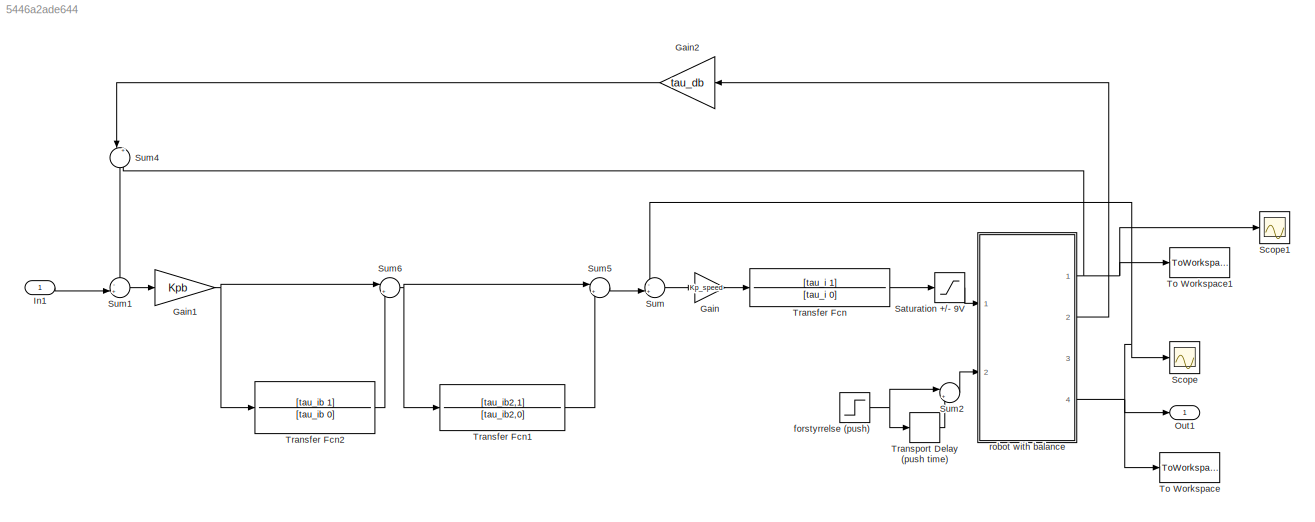
MODEL slx_5446a2ade644
KIND model
CONFIG AbsTol = auto
CONFIG EnableMultiTasking = on
CONFIG FixedStep = auto
CONFIG MaxStep = 0.001
CONFIG MinStep = auto
CONFIG RelTol = 1e-3
CONFIG SampleTimeConstraint = Unconstrained
CONFIG Solver = ode15s
CONFIG SolverName = ode15s
CONFIG StartTime = 0.0
CONFIG StopTime = 10
BLOCK [Gain] Gain
  Gain = Kp_speed
  OutDataTypeStr = Inherit: Inherit via internal rule
  ParamDataTypeStr = Inherit: Inherit via internal rule
  SaturateOnIntegerOverflow = off
BLOCK [Gain] Gain1
  Gain = Kpb
  OutDataTypeStr = Inherit: Inherit via internal rule
  ParamDataTypeStr = Inherit: Inherit via internal rule
  SaturateOnIntegerOverflow = off
BLOCK [Gain] Gain2
  Gain = tau_db
  OutDataTypeStr = Inherit: Inherit via internal rule
  ParamDataTypeStr = Inherit: Inherit via internal rule
  SaturateOnIntegerOverflow = off
BLOCK [Inport] In1
  IconDisplay = Port number
BLOCK [Outport] Out1
  IconDisplay = Port number
BLOCK [Saturate] Saturation +//- 9V
  InputPortMap = u0
  LowerLimit = -9
  Ports = [1, 1]
  UpperLimit = 9
BLOCK [Scope] Scope
  NumInputPorts = 1
  Ports = [1]
  ScopeSpecificationString = Simulink.scopes.TimeScopeBlockCfg('CurrentConfiguration', extmgr.ConfigurationSet(extmgr.Configuration('Core','General UI',true),extmgr.Configuration('Core','Source UI',true),extmgr.Configuration('Sources','WiredSimulink',true),extmgr.Configuration('Visuals','Time Domain',true,'SerializedDisplays',{struct('MinYLimReal','-0.44936','MaxYLimReal','1.64365','YLabelReal','','MinYLimMag','0.00000','MaxY...<+1388ch>
BLOCK [Scope] Scope1
  NumInputPorts = 1
  Ports = [1]
  ScopeSpecificationString = Simulink.scopes.TimeScopeBlockCfg('CurrentConfiguration', extmgr.ConfigurationSet(extmgr.Configuration('Core','General UI',true),extmgr.Configuration('Core','Source UI',true),extmgr.Configuration('Sources','WiredSimulink',true,'DataLoggingVariableName','ScopeData1'),extmgr.Configuration('Visuals','Time Domain',true,'SerializedDisplays',{struct('MinYLimReal','-0.14066','MaxYLimReal','0.59744','YLab...<+1406ch>
BLOCK [Sum] Sum
  IconShape = round
  InputSameDT = off
  Inputs = -+|
  OutDataTypeStr = Inherit: Inherit via internal rule
  Ports = [2, 1]
  SaturateOnIntegerOverflow = off
BLOCK [Sum] Sum1
  IconShape = round
  InputSameDT = off
  Inputs = -+|
  OutDataTypeStr = Inherit: Inherit via internal rule
  Ports = [2, 1]
  SaturateOnIntegerOverflow = off
BLOCK [Sum] Sum2
  IconShape = round
  InputSameDT = off
  Inputs = |+-
  OutDataTypeStr = Inherit: Inherit via internal rule
  Ports = [2, 1]
  SaturateOnIntegerOverflow = off
BLOCK [Sum] Sum4
  IconShape = round
  InputSameDT = off
  Inputs = |++
  OutDataTypeStr = Inherit: Inherit via internal rule
  Ports = [2, 1]
  SaturateOnIntegerOverflow = off
BLOCK [Sum] Sum5
  IconShape = round
  InputSameDT = off
  Inputs = |++
  OutDataTypeStr = Inherit: Inherit via internal rule
  Ports = [2, 1]
  SaturateOnIntegerOverflow = off
BLOCK [Sum] Sum6
  IconShape = round
  InputSameDT = off
  Inputs = |++
  OutDataTypeStr = Inherit: Inherit via internal rule
  Ports = [2, 1]
  SaturateOnIntegerOverflow = off
BLOCK [ToWorkspace] To Workspace
  FixptAsFi = on
  MaxDataPoints = inf
  Ports = [1]
  SampleTime = -1
  Save2DSignal = 3-D array (concatenate along third dimension)
  SaveFormat = Timeseries
  VariableName = speed_out
BLOCK [ToWorkspace] To Workspace1
  FixptAsFi = on
  MaxDataPoints = inf
  Ports = [1]
  SampleTime = -1
  Save2DSignal = 3-D array (concatenate along third dimension)
  SaveFormat = Timeseries
  VariableName = pitchout
BLOCK [TransferFcn] Transfer Fcn
  Denominator = [tau_i 0]
  Numerator = [tau_i 1]
BLOCK [TransferFcn] Transfer Fcn1
  Denominator = [tau_ib2,0]
  Numerator = [tau_ib2,1]
BLOCK [TransferFcn] Transfer Fcn2
  Denominator = [tau_ib 0]
  Numerator = [tau_ib 1]
BLOCK [TransportDelay] Transport Delay (push time)
  DelayTime = 0.1
  Ports = [1, 1]
BLOCK [Step] forstyrrelse (push)
  SampleTime = 0
  Time = 6
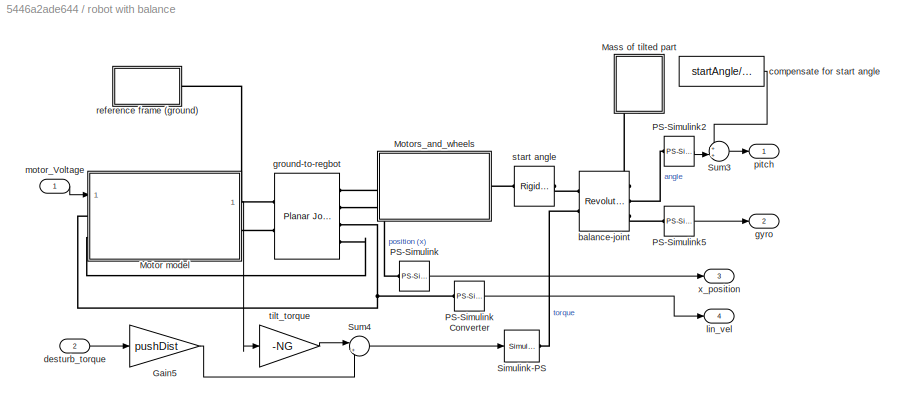
BLOCK [SubSystem] robot with balance
  Ports = [2, 4]
  RequestExecContextInheritance = off
  Variant = off
BLOCK [Gain] robot with balance/Gain5
  Gain = pushDist
  OutDataTypeStr = Inherit: Inherit via internal rule
  ParamDataTypeStr = Inherit: Inherit via internal rule
  SaturateOnIntegerOverflow = off
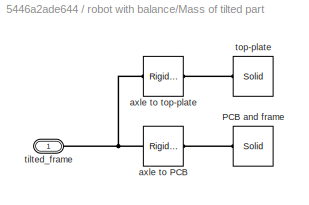
BLOCK [SubSystem] robot with balance/Mass of tilted part
  Ports = [0, 0, 0, 0, 0, 1]
  RequestExecContextInheritance = off
  Variant = off
BLOCK [Reference] robot with balance/Mass of tilted part/PCB and frame  REF=sm_lib/Body Elements/Solid
  Ports = [0, 0, 0, 0, 0, 0, 1]
  SourceBlock = sm_lib/Body Elements/Solid
  SourceProductBaseCode = MS
  SourceProductName = Simscape Multibody
  SourceType = Solid
BLOCK [Reference] robot with balance/Mass of tilted part/axle to PCB  REF=sm_lib/Frames and
Transforms/Rigid
Transform
  Ports = [0, 0, 0, 0, 0, 1, 1]
  SourceBlock = sm_lib/Frames and\nTransforms/Rigid\nTransform
  SourceProductBaseCode = MS
  SourceProductName = Simscape Multibody
  SourceType = Rigid\nTransform
BLOCK [Reference] robot with balance/Mass of tilted part/axle to top-plate  REF=sm_lib/Frames and
Transforms/Rigid
Transform
  Ports = [0, 0, 0, 0, 0, 1, 1]
  SourceBlock = sm_lib/Frames and\nTransforms/Rigid\nTransform
  SourceProductBaseCode = MS
  SourceProductName = Simscape Multibody
  SourceType = Rigid\nTransform
BLOCK [PMIOPort] robot with balance/Mass of tilted part/tilted_frame
  Port = 1
  Side = Left
BLOCK [Reference] robot with balance/Mass of tilted part/top-plate  REF=sm_lib/Body Elements/Solid
  Ports = [0, 0, 0, 0, 0, 0, 1]
  SourceBlock = sm_lib/Body Elements/Solid
  SourceProductBaseCode = MS
  SourceProductName = Simscape Multibody
  SourceType = Solid
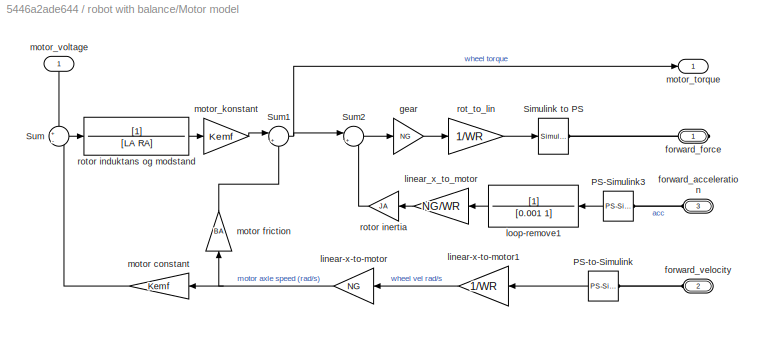
BLOCK [SubSystem] robot with balance/Motor model
  Ports = [1, 1, 0, 0, 0, 2, 1]
  RequestExecContextInheritance = off
  Variant = off
BLOCK [Reference] robot with balance/Motor model/PS-Simulink3  REF=nesl_utility/PS-Simulink
Converter
  Ports = [0, 1, 0, 0, 0, 1]
  SourceBlock = nesl_utility/PS-Simulink\nConverter
  SourceProductBaseCode = SS
  SourceProductName = Simscape
  SourceType = PS-Simulink\nConverter
BLOCK [Reference] robot with balance/Motor model/PS-to-Simulink  REF=nesl_utility/PS-Simulink
Converter
  Ports = [0, 1, 0, 0, 0, 1]
  SourceBlock = nesl_utility/PS-Simulink\nConverter
  SourceProductBaseCode = SS
  SourceProductName = Simscape
  SourceType = PS-Simulink\nConverter
BLOCK [Reference] robot with balance/Motor model/Simulink to PS  REF=nesl_utility/Simulink-PS
Converter
  Ports = [1, 0, 0, 0, 0, 0, 1]
  SourceBlock = nesl_utility/Simulink-PS\nConverter
  SourceProductBaseCode = SS
  SourceProductName = Simscape
  SourceType = Simulink-PS\nConverter
BLOCK [Sum] robot with balance/Motor model/Sum
  IconShape = round
  InputSameDT = off
  Inputs = +|-
  OutDataTypeStr = Inherit: Inherit via internal rule
  Ports = [2, 1]
  SaturateOnIntegerOverflow = off
BLOCK [Sum] robot with balance/Motor model/Sum1
  IconShape = round
  InputSameDT = off
  Inputs = |+-
  OutDataTypeStr = Inherit: Inherit via internal rule
  Ports = [2, 1]
  SaturateOnIntegerOverflow = off
BLOCK [Sum] robot with balance/Motor model/Sum2
  IconShape = round
  InputSameDT = off
  Inputs = |+-
  OutDataTypeStr = Inherit: Inherit via internal rule
  Ports = [2, 1]
  SaturateOnIntegerOverflow = off
BLOCK [PMIOPort] robot with balance/Motor model/forward_acceleration
  Port = 3
  Side = Left
BLOCK [PMIOPort] robot with balance/Motor model/forward_force
  Port = 1
  Side = Right
BLOCK [PMIOPort] robot with balance/Motor model/forward_velocity
  Port = 2
  Side = Left
BLOCK [Gain] robot with balance/Motor model/gear
  Gain = NG
  OutDataTypeStr = Inherit: Inherit via internal rule
  ParamDataTypeStr = Inherit: Inherit via internal rule
  SaturateOnIntegerOverflow = off
BLOCK [Gain] robot with balance/Motor model/linear-x-to-motor
  Gain = NG
  OutDataTypeStr = Inherit: Inherit via internal rule
  ParamDataTypeStr = Inherit: Inherit via internal rule
  SaturateOnIntegerOverflow = off
BLOCK [Gain] robot with balance/Motor model/linear-x-to-motor1
  Gain = 1/WR
  OutDataTypeStr = Inherit: Inherit via internal rule
  ParamDataTypeStr = Inherit: Inherit via internal rule
  SaturateOnIntegerOverflow = off
BLOCK [Gain] robot with balance/Motor model/linear_x_to_motor
  Gain = NG/WR
  OutDataTypeStr = Inherit: Inherit via internal rule
  ParamDataTypeStr = Inherit: Inherit via internal rule
  SaturateOnIntegerOverflow = off
BLOCK [TransferFcn] robot with balance/Motor model/loop-remove1
  Denominator = [0.001 1]
BLOCK [Gain] robot with balance/Motor model/motor constant
  Gain = Kemf
  OutDataTypeStr = Inherit: Inherit via internal rule
  ParamDataTypeStr = Inherit: Inherit via internal rule
  SaturateOnIntegerOverflow = off
BLOCK [Gain] robot with balance/Motor model/motor friction
  Gain = BA
  OutDataTypeStr = Inherit: Inherit via internal rule
  ParamDataTypeStr = Inherit: Inherit via internal rule
  SaturateOnIntegerOverflow = off
BLOCK [Gain] robot with balance/Motor model/motor_konstant
  Gain = Kemf
  OutDataTypeStr = Inherit: Inherit via internal rule
  ParamDataTypeStr = Inherit: Inherit via internal rule
  SaturateOnIntegerOverflow = off
BLOCK [Outport] robot with balance/Motor model/motor_torque
  IconDisplay = Port number
BLOCK [Inport] robot with balance/Motor model/motor_voltage
  IconDisplay = Port number
BLOCK [Gain] robot with balance/Motor model/rot_to_lin
  Gain = 1/WR
  OutDataTypeStr = Inherit: Inherit via internal rule
  ParamDataTypeStr = Inherit: Inherit via internal rule
  SaturateOnIntegerOverflow = off
BLOCK [TransferFcn] robot with balance/Motor model/rotor induktans og modstand
  Denominator = [LA RA]
BLOCK [Gain] robot with balance/Motor model/rotor inertia
  Gain = JA
  OutDataTypeStr = Inherit: Inherit via internal rule
  ParamDataTypeStr = Inherit: Inherit via internal rule
  SaturateOnIntegerOverflow = off
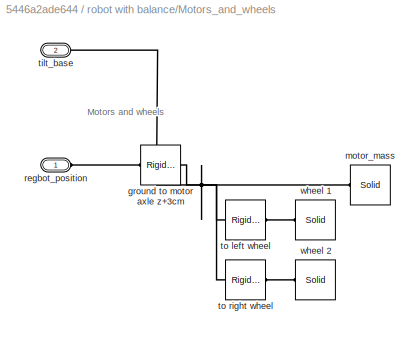
BLOCK [SubSystem] robot with balance/Motors_and_wheels
  Ports = [0, 0, 0, 0, 0, 1, 1]
  RequestExecContextInheritance = off
  Variant = off
BLOCK [Reference] robot with balance/Motors_and_wheels/ground to motor axle z+3cm  REF=sm_lib/Frames and
Transforms/Rigid
Transform
  Ports = [0, 0, 0, 0, 0, 1, 1]
  SourceBlock = sm_lib/Frames and\nTransforms/Rigid\nTransform
  SourceProductBaseCode = MS
  SourceProductName = Simscape Multibody
  SourceType = Rigid\nTransform
BLOCK [Reference] robot with balance/Motors_and_wheels/motor_mass  REF=sm_lib/Body Elements/Solid
  Ports = [0, 0, 0, 0, 0, 0, 1]
  SourceBlock = sm_lib/Body Elements/Solid
  SourceProductBaseCode = MS
  SourceProductName = Simscape Multibody
  SourceType = Solid
BLOCK [PMIOPort] robot with balance/Motors_and_wheels/regbot_position
  Port = 1
  Side = Left
BLOCK [PMIOPort] robot with balance/Motors_and_wheels/tilt_base
  Port = 2
  Side = Right
BLOCK [Reference] robot with balance/Motors_and_wheels/to left wheel  REF=sm_lib/Frames and
Transforms/Rigid
Transform
  Ports = [0, 0, 0, 0, 0, 1, 1]
  SourceBlock = sm_lib/Frames and\nTransforms/Rigid\nTransform
  SourceProductBaseCode = MS
  SourceProductName = Simscape Multibody
  SourceType = Rigid\nTransform
BLOCK [Reference] robot with balance/Motors_and_wheels/to right wheel  REF=sm_lib/Frames and
Transforms/Rigid
Transform
  Ports = [0, 0, 0, 0, 0, 1, 1]
  SourceBlock = sm_lib/Frames and\nTransforms/Rigid\nTransform
  SourceProductBaseCode = MS
  SourceProductName = Simscape Multibody
  SourceType = Rigid\nTransform
BLOCK [Reference] robot with balance/Motors_and_wheels/wheel 1  REF=sm_lib/Body Elements/Solid
  Ports = [0, 0, 0, 0, 0, 0, 1]
  SourceBlock = sm_lib/Body Elements/Solid
  SourceProductBaseCode = MS
  SourceProductName = Simscape Multibody
  SourceType = Solid
BLOCK [Reference] robot with balance/Motors_and_wheels/wheel 2  REF=sm_lib/Body Elements/Solid
  Ports = [0, 0, 0, 0, 0, 0, 1]
  SourceBlock = sm_lib/Body Elements/Solid
  SourceProductBaseCode = MS
  SourceProductName = Simscape Multibody
  SourceType = Solid
BLOCK [Reference] robot with balance/PS-Simulink  REF=nesl_utility/PS-Simulink
Converter
  Ports = [0, 1, 0, 0, 0, 1]
  SourceBlock = nesl_utility/PS-Simulink\nConverter
  SourceProductBaseCode = SS
  SourceProductName = Simscape
  SourceType = PS-Simulink\nConverter
BLOCK [Reference] robot with balance/PS-Simulink Converter  REF=nesl_utility/PS-Simulink
Converter
  Ports = [0, 1, 0, 0, 0, 1]
  SourceBlock = nesl_utility/PS-Simulink\nConverter
  SourceProductBaseCode = SS
  SourceProductName = Simscape
  SourceType = PS-Simulink\nConverter
BLOCK [Reference] robot with balance/PS-Simulink2  REF=nesl_utility/PS-Simulink
Converter
  Ports = [0, 1, 0, 0, 0, 1]
  SourceBlock = nesl_utility/PS-Simulink\nConverter
  SourceProductBaseCode = SS
  SourceProductName = Simscape
  SourceType = PS-Simulink\nConverter
BLOCK [Reference] robot with balance/PS-Simulink5  REF=nesl_utility/PS-Simulink
Converter
  Ports = [0, 1, 0, 0, 0, 1]
  SourceBlock = nesl_utility/PS-Simulink\nConverter
  SourceProductBaseCode = SS
  SourceProductName = Simscape
  SourceType = PS-Simulink\nConverter
BLOCK [Reference] robot with balance/Simulink-PS  REF=nesl_utility/Simulink-PS
Converter
  Ports = [1, 0, 0, 0, 0, 0, 1]
  SourceBlock = nesl_utility/Simulink-PS\nConverter
  SourceProductBaseCode = SS
  SourceProductName = Simscape
  SourceType = Simulink-PS\nConverter
BLOCK [Sum] robot with balance/Sum3
  IconShape = round
  InputSameDT = off
  Inputs = ++|
  OutDataTypeStr = Inherit: Inherit via internal rule
  Ports = [2, 1]
  SaturateOnIntegerOverflow = off
BLOCK [Sum] robot with balance/Sum4
  IconShape = round
  InputSameDT = off
  Inputs = |++
  OutDataTypeStr = Inherit: Inherit via internal rule
  Ports = [2, 1]
  SaturateOnIntegerOverflow = off
BLOCK [Reference] robot with balance/balance-joint  REF=sm_lib/Joints/Revolute Joint
  Ports = [0, 0, 0, 0, 0, 2, 3]
  SourceBlock = sm_lib/Joints/Revolute Joint
  SourceProductBaseCode = MS
  SourceProductName = Simscape Multibody
  SourceType = Revolute Joint
BLOCK [Constant] robot with balance/compensate for start angle
  Value = startAngle/180*pi
BLOCK [Inport] robot with balance/desturb_torque
  IconDisplay = Port number
  Port = 2
BLOCK [Reference] robot with balance/ground-to-regbot  REF=sm_lib/Joints/Planar Joint
  Ports = [0, 0, 0, 0, 0, 2, 4]
  SourceBlock = sm_lib/Joints/Planar Joint
  SourceProductBaseCode = MS
  SourceProductName = Simscape Multibody
  SourceType = Planar Joint
BLOCK [Outport] robot with balance/gyro
  IconDisplay = Port number
  Port = 2
BLOCK [Outport] robot with balance/lin_vel
  IconDisplay = Port number
  Port = 4
BLOCK [Inport] robot with balance/motor_Voltage
  IconDisplay = Port number
BLOCK [Outport] robot with balance/pitch
  IconDisplay = Port number
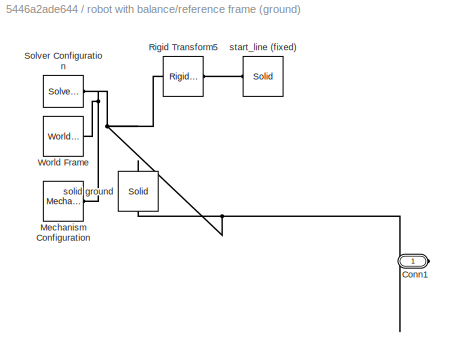
BLOCK [SubSystem] robot with balance/reference frame (ground)
  Ports = [0, 0, 0, 0, 0, 0, 1]
  RequestExecContextInheritance = off
  Variant = off
BLOCK [PMIOPort] robot with balance/reference frame (ground)/Conn1
  Port = 1
  Side = Right
BLOCK [Reference] robot with balance/reference frame (ground)/Mechanism Configuration  REF=sm_lib/Utilities/Mechanism
Configuration
  Ports = [0, 0, 0, 0, 0, 0, 1]
  SourceBlock = sm_lib/Utilities/Mechanism\nConfiguration
  SourceProductBaseCode = MS
  SourceProductName = Simscape Multibody
  SourceType = Mechanism\nConfiguration
BLOCK [Reference] robot with balance/reference frame (ground)/Rigid Transform5  REF=sm_lib/Frames and
Transforms/Rigid
Transform
  Ports = [0, 0, 0, 0, 0, 1, 1]
  SourceBlock = sm_lib/Frames and\nTransforms/Rigid\nTransform
  SourceProductBaseCode = MS
  SourceProductName = Simscape Multibody
  SourceType = Rigid\nTransform
BLOCK [Reference] robot with balance/reference frame (ground)/Solver Configuration  REF=nesl_utility/Solver
Configuration
  Ports = [0, 0, 0, 0, 0, 0, 1]
  SourceBlock = nesl_utility/Solver\nConfiguration
  SourceProductBaseCode = SS
  SourceProductName = Simscape
  SourceType = Solver\nConfiguration
BLOCK [Reference] robot with balance/reference frame (ground)/World Frame  REF=sm_lib/Frames and
Transforms/World Frame
  Ports = [0, 0, 0, 0, 0, 0, 1]
  SourceBlock = sm_lib/Frames and\nTransforms/World Frame
  SourceProductBaseCode = MS
  SourceProductName = Simscape Multibody
  SourceType = World Frame
BLOCK [Reference] robot with balance/reference frame (ground)/solid ground  REF=sm_lib/Body Elements/Solid
  Ports = [0, 0, 0, 0, 0, 0, 1]
  SourceBlock = sm_lib/Body Elements/Solid
  SourceProductBaseCode = MS
  SourceProductName = Simscape Multibody
  SourceType = Solid
BLOCK [Reference] robot with balance/reference frame (ground)/start_line (fixed)  REF=sm_lib/Body Elements/Solid
  Ports = [0, 0, 0, 0, 0, 0, 1]
  SourceBlock = sm_lib/Body Elements/Solid
  SourceProductBaseCode = MS
  SourceProductName = Simscape Multibody
  SourceType = Solid
BLOCK [Reference] robot with balance/start angle  REF=sm_lib/Frames and
Transforms/Rigid
Transform
  Ports = [0, 0, 0, 0, 0, 1, 1]
  SourceBlock = sm_lib/Frames and\nTransforms/Rigid\nTransform
  SourceProductBaseCode = MS
  SourceProductName = Simscape Multibody
  SourceType = Rigid\nTransform
BLOCK [Gain] robot with balance/tilt_torque
  Gain = -NG
  OutDataTypeStr = Inherit: Inherit via internal rule
  ParamDataTypeStr = Inherit: Inherit via internal rule
  SaturateOnIntegerOverflow = off
BLOCK [Outport] robot with balance/x_position
  IconDisplay = Port number
  Port = 3
ANNOTATION robot with balance/Motors_and_wheels: Motors and wheels
NET Gain1:1 -> Sum6:1, Transfer Fcn2:1
LINE Gain2:1 -> Sum4:1
LINE Gain:1 -> Transfer Fcn:1
LINE In1:1 -> Sum1:2
LINE Saturation +//- 9V:1 -> robot with balance:1
LINE Sum1:1 -> Gain1:1
LINE Sum2:1 -> robot with balance:2
LINE Sum4:1 -> Sum1:1
LINE Sum5:1 -> Sum:2
NET Sum6:1 -> Sum5:1, Transfer Fcn1:1
LINE Sum:1 -> Gain:1
LINE Transfer Fcn1:1 -> Sum5:2
LINE Transfer Fcn2:1 -> Sum6:2
LINE Transfer Fcn:1 -> Saturation +//- 9V:1
LINE Transport Delay (push time):1 -> Sum2:2
NET forstyrrelse (push):1 -> Sum2:1, Transport Delay (push time):1
LINE robot with balance/Gain5:1 -> robot with balance/Sum4:2
LINE robot with balance/Motor model/PS-Simulink3:1 -> robot with balance/Motor model/loop-remove1:1
LINE robot with balance/Motor model/PS-to-Simulink:1 -> robot with balance/Motor model/linear-x-to-motor1:1
NET robot with balance/Motor model/Sum1:1 -> robot with balance/Motor model/Sum2:1, robot with balance/Motor model/motor_torque:1
LINE robot with balance/Motor model/Sum2:1 -> robot with balance/Motor model/gear:1
LINE robot with balance/Motor model/Sum:1 -> robot with balance/Motor model/rotor induktans og modstand:1
LINE robot with balance/Motor model/gear:1 -> robot with balance/Motor model/rot_to_lin:1
LINE robot with balance/Motor model/linear-x-to-motor1:1 -> robot with balance/Motor model/linear-x-to-motor:1
NET robot with balance/Motor model/linear-x-to-motor:1 -> robot with balance/Motor model/motor constant:1, robot with balance/Motor model/motor friction:1
LINE robot with balance/Motor model/linear_x_to_motor:1 -> robot with balance/Motor model/rotor inertia:1
LINE robot with balance/Motor model/loop-remove1:1 -> robot with balance/Motor model/linear_x_to_motor:1
LINE robot with balance/Motor model/motor constant:1 -> robot with balance/Motor model/Sum:2
LINE robot with balance/Motor model/motor friction:1 -> robot with balance/Motor model/Sum1:2
LINE robot with balance/Motor model/motor_konstant:1 -> robot with balance/Motor model/Sum1:1
LINE robot with balance/Motor model/motor_voltage:1 -> robot with balance/Motor model/Sum:1
LINE robot with balance/Motor model/rot_to_lin:1 -> robot with balance/Motor model/Simulink to PS:1
LINE robot with balance/Motor model/rotor induktans og modstand:1 -> robot with balance/Motor model/motor_konstant:1
LINE robot with balance/Motor model/rotor inertia:1 -> robot with balance/Motor model/Sum2:2
LINE robot with balance/Motor model:1 -> robot with balance/tilt_torque:1
LINE robot with balance/PS-Simulink Converter:1 -> robot with balance/lin_vel:1
LINE robot with balance/PS-Simulink2:1 -> robot with balance/Sum3:2
LINE robot with balance/PS-Simulink5:1 -> robot with balance/gyro:1
LINE robot with balance/PS-Simulink:1 -> robot with balance/x_position:1
LINE robot with balance/Sum3:1 -> robot with balance/pitch:1
LINE robot with balance/Sum4:1 -> robot with balance/Simulink-PS:1
LINE robot with balance/compensate for start angle:1 -> robot with balance/Sum3:1
LINE robot with balance/desturb_torque:1 -> robot with balance/Gain5:1
LINE robot with balance/motor_Voltage:1 -> robot with balance/Motor model:1
LINE robot with balance/tilt_torque:1 -> robot with balance/Sum4:1
NET robot with balance:1 -> Scope1:1, Sum4:2, To Workspace1:1
LINE robot with balance:2 -> Gain2:1
NET robot with balance:4 -> Out1:1, Scope:1, Sum:1, To Workspace:1
PLINE robot with balance/Mass of tilted part/PCB and frame:RConn1 -- robot with balance/Mass of tilted part/axle to PCB:RConn1
PNET net1: robot with balance/Mass of tilted part/axle to PCB:LConn1 -- robot with balance/Mass of tilted part/axle to top-plate:LConn1 -- robot with balance/Mass of tilted part/tilted_frame:RConn1
PLINE robot with balance/Mass of tilted part/axle to top-plate:RConn1 -- robot with balance/Mass of tilted part/top-plate:RConn1
PLINE robot with balance/Mass of tilted part:LConn1 -- robot with balance/balance-joint:RConn1
PLINE robot with balance/Motor model/PS-Simulink3:LConn1 -- robot with balance/Motor model/forward_acceleration:RConn1
PLINE robot with balance/Motor model/PS-to-Simulink:LConn1 -- robot with balance/Motor model/forward_velocity:RConn1
PLINE robot with balance/Motor model/Simulink to PS:RConn1 -- robot with balance/Motor model/forward_force:RConn1
PNET net2: robot with balance/Motor model:LConn1 -- robot with balance/PS-Simulink Converter:LConn1 -- robot with balance/ground-to-regbot:RConn3
PLINE robot with balance/Motor model:LConn2 -- robot with balance/ground-to-regbot:RConn4
PLINE robot with balance/Motor model:RConn1 -- robot with balance/ground-to-regbot:LConn2
PLINE robot with balance/Motors_and_wheels/ground to motor axle z+3cm:LConn1 -- robot with balance/Motors_and_wheels/regbot_position:RConn1
PNET net3: robot with balance/Motors_and_wheels/ground to motor axle z+3cm:RConn1 -- robot with balance/Motors_and_wheels/motor_mass:RConn1 -- robot with balance/Motors_and_wheels/tilt_base:RConn1 -- robot with balance/Motors_and_wheels/to left wheel:LConn1 -- robot with balance/Motors_and_wheels/to right wheel:LConn1
PLINE robot with balance/Motors_and_wheels/to left wheel:RConn1 -- robot with balance/Motors_and_wheels/wheel 1:RConn1
PLINE robot with balance/Motors_and_wheels/to right wheel:RConn1 -- robot with balance/Motors_and_wheels/wheel 2:RConn1
PLINE robot with balance/Motors_and_wheels:LConn1 -- robot with balance/ground-to-regbot:RConn1
PLINE robot with balance/Motors_and_wheels:RConn1 -- robot with balance/start angle:LConn1
PLINE robot with balance/PS-Simulink2:LConn1 -- robot with balance/balance-joint:RConn2
PLINE robot with balance/PS-Simulink5:LConn1 -- robot with balance/balance-joint:RConn3
PLINE robot with balance/PS-Simulink:LConn1 -- robot with balance/ground-to-regbot:RConn2
PLINE robot with balance/Simulink-PS:RConn1 -- robot with balance/balance-joint:LConn2
PLINE robot with balance/balance-joint:LConn1 -- robot with balance/start angle:RConn1
PLINE robot with balance/ground-to-regbot:LConn1 -- robot with balance/reference frame (ground):RConn1
PNET net4: robot with balance/reference frame (ground)/Conn1:RConn1 -- robot with balance/reference frame (ground)/Mechanism Configuration:RConn1 -- robot with balance/reference frame (ground)/Rigid Transform5:LConn1 -- robot with balance/reference frame (ground)/Solver Configuration:RConn1 -- robot with balance/reference frame (ground)/World Frame:RConn1 -- robot with balance/reference frame (ground)/solid ground:RConn1
PLINE robot with balance/reference frame (ground)/Rigid Transform5:RConn1 -- robot with balance/reference frame (ground)/start_line (fixed):RConn1
note: NET lines group one-source signal fan-out (src -> all destinations, sorted); 1:1 wires keep LINE; PNET lines group multi-terminal physical nets as a canonical sorted terminal list (undirected conserving connections); 2-terminal nets keep the pairwise PLINE form
